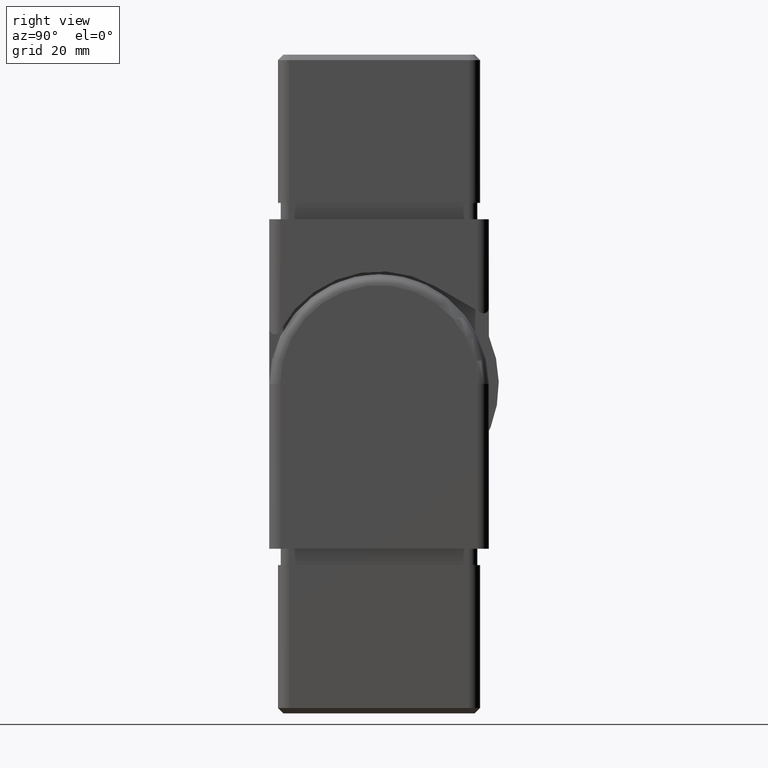
[diagram: clean part render]
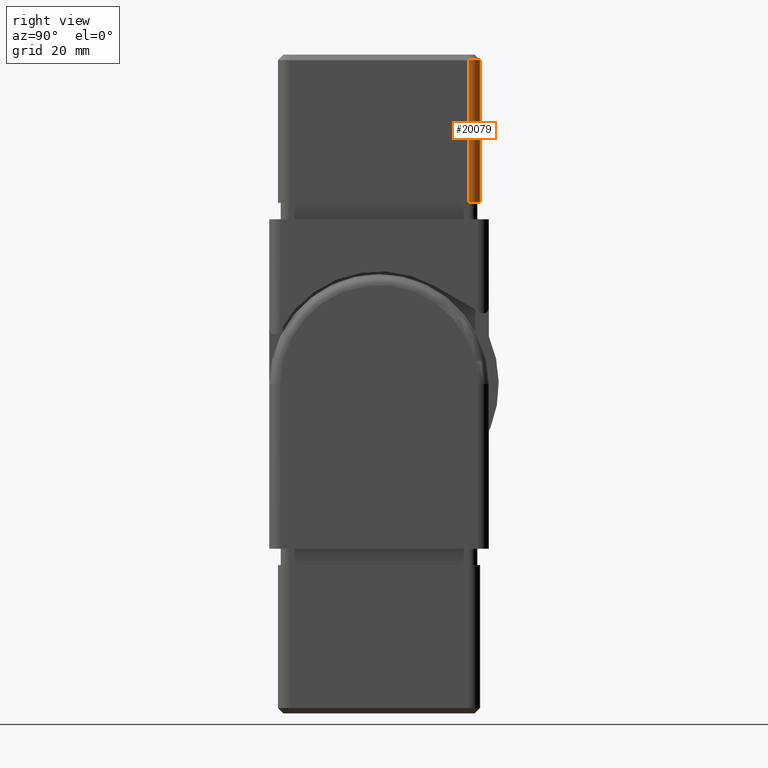
[diagram: same view with one face highlighted and labeled with its STEP entity id]
A machine part, right view. The second image highlights one B-rep face of the part: STEP entity #20079.
In plain terms, the highlighted cylindrical surface (edge-blend (fillet) strip) has radius 2 mm, axis along (-0, -0, -1).
Its self-contained STEP definition (entity closure, byte-faithful):
#331 = AXIS2_PLACEMENT_3D ( 'NONE', #4542, #18289, #6443 ) ;
#837 = EDGE_CURVE ( 'NONE', #2863, #11197, #3421, .T. ) ;
#1234 = CIRCLE ( 'NONE', #14730, 2.000000000000001800 ) ;
#1263 = AXIS2_PLACEMENT_3D ( 'NONE', #21792, #10143, #21877 ) ;
#2863 = VERTEX_POINT ( 'NONE', #24241 ) ;
#3017 = LINE ( 'NONE', #19961, #5177 ) ;
#3041 = CARTESIAN_POINT ( 'NONE',  ( 18.40000000000000600, 16.39999999999999900, 29.00000000000000400 ) ) ;
#3421 = CIRCLE ( 'NONE', #1263, 1.999999999999988000 ) ;
#3802 = ORIENTED_EDGE ( 'NONE', *, *, #837, .F. ) ;
#4542 = CARTESIAN_POINT ( 'NONE',  ( 16.40000000000000600, 16.39999999999999900, 30.00000000000000000 ) ) ;
#5177 = VECTOR ( 'NONE', #10251, 1000.000000000000000 ) ;
#6443 = DIRECTION ( 'NONE',  ( -1.000000000000000000, 0.0000000000000000000, 0.0000000000000000000 ) ) ;
#8058 = FACE_OUTER_BOUND ( 'NONE', #12828, .T. ) ;
#8304 = CARTESIAN_POINT ( 'NONE',  ( 16.40000000000000600, 16.39999999999999900, 29.00000000000000400 ) ) ;
#8900 = VECTOR ( 'NONE', #15574, 1000.000000000000000 ) ;
#10143 = DIRECTION ( 'NONE',  ( -0.0000000000000000000, -0.0000000000000000000, -1.000000000000000000 ) ) ;
#10251 = DIRECTION ( 'NONE',  ( -0.0000000000000000000, -0.0000000000000000000, -1.000000000000000000 ) ) ;
#10547 = ORIENTED_EDGE ( 'NONE', *, *, #13474, .F. ) ;
#11197 = VERTEX_POINT ( 'NONE', #18237 ) ;
#11445 = VERTEX_POINT ( 'NONE', #3041 ) ;
#12805 = EDGE_CURVE ( 'NONE', #16634, #11445, #1234, .T. ) ;
#12828 = EDGE_LOOP ( 'NONE', ( #22882, #3802, #10547, #16400 ) ) ;
#13474 = EDGE_CURVE ( 'NONE', #16634, #2863, #15371, .T. ) ;
#14414 = EDGE_CURVE ( 'NONE', #11445, #11197, #3017, .T. ) ;
#14730 = AXIS2_PLACEMENT_3D ( 'NONE', #8304, #24178, #16142 ) ;
#15371 = LINE ( 'NONE', #17762, #8900 ) ;
#15574 = DIRECTION ( 'NONE',  ( -0.0000000000000000000, -0.0000000000000000000, -1.000000000000000000 ) ) ;
#16142 = DIRECTION ( 'NONE',  ( 1.000000000000000000, 0.0000000000000000000, 0.0000000000000000000 ) ) ;
#16400 = ORIENTED_EDGE ( 'NONE', *, *, #12805, .T. ) ;
#16634 = VERTEX_POINT ( 'NONE', #24626 ) ;
#17762 = CARTESIAN_POINT ( 'NONE',  ( 16.40000000000000600, 18.39999999999999500, 30.00000000000000000 ) ) ;
#18237 = CARTESIAN_POINT ( 'NONE',  ( 18.39999999999998800, 16.39999999999997700, 3.000000000000002700 ) ) ;
#18289 = DIRECTION ( 'NONE',  ( -0.0000000000000000000, -0.0000000000000000000, -1.000000000000000000 ) ) ;
#19961 = CARTESIAN_POINT ( 'NONE',  ( 18.40000000000000600, 16.39999999999999900, 30.00000000000000000 ) ) ;
#20079 = ADVANCED_FACE ( 'NONE', ( #8058 ), #23183, .T. ) ;
#21792 = CARTESIAN_POINT ( 'NONE',  ( 16.40000000000000600, 16.39999999999999900, 3.000000000000002700 ) ) ;
#21877 = DIRECTION ( 'NONE',  ( -1.000000000000000000, 0.0000000000000000000, 0.0000000000000000000 ) ) ;
#22882 = ORIENTED_EDGE ( 'NONE', *, *, #14414, .T. ) ;
#23183 = CYLINDRICAL_SURFACE ( 'NONE', #331, 2.000000000000000000 ) ;
#24178 = DIRECTION ( 'NONE',  ( -0.0000000000000000000, -0.0000000000000000000, -1.000000000000000000 ) ) ;
#24241 = CARTESIAN_POINT ( 'NONE',  ( 16.40000000000002000, 18.39999999999998400, 3.000000000000002700 ) ) ;
#24626 = CARTESIAN_POINT ( 'NONE',  ( 16.40000000000000600, 18.39999999999999500, 29.00000000000000400 ) ) ;